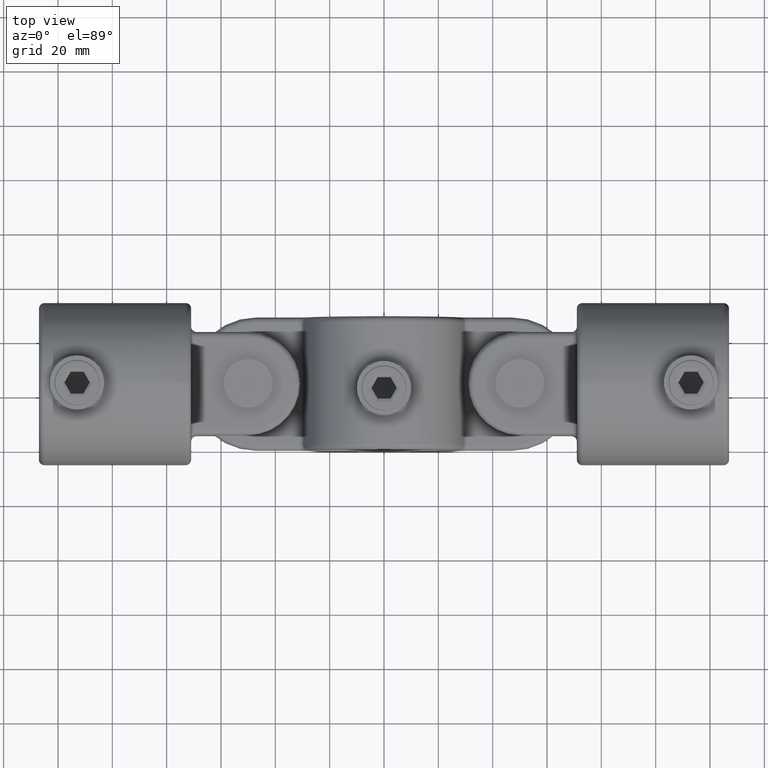
[diagram: clean part render]
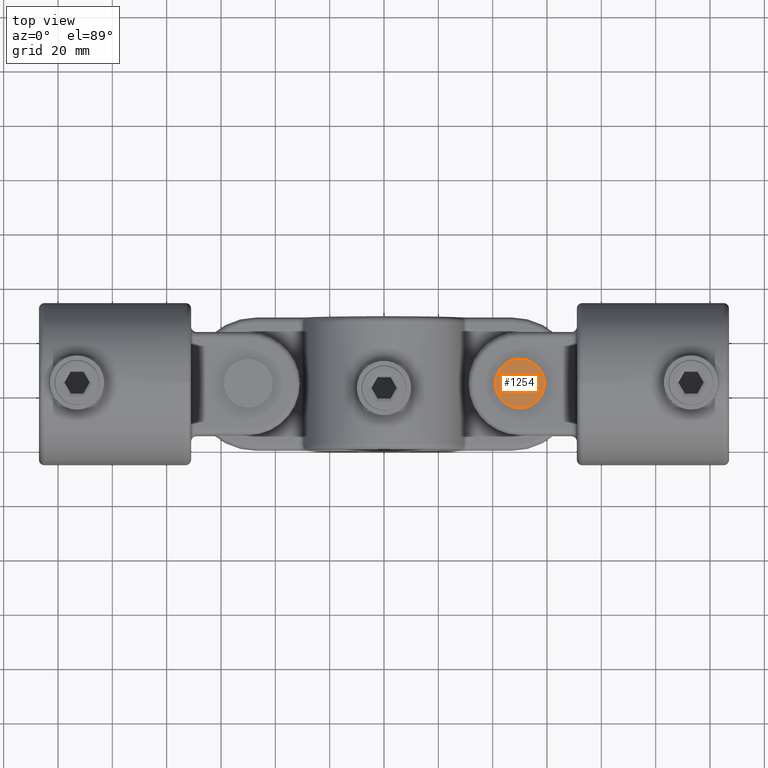
[diagram: same view with one face highlighted and labeled with its STEP entity id]
A machine part, top view. The second image highlights one B-rep face of the part: STEP entity #1254.
In plain terms, the highlighted planar face has unit normal (0, 0, 1).
Its self-contained STEP definition (entity closure, byte-faithful):
#254 = AXIS2_PLACEMENT_3D ( 'NONE', #2747, #1754, #3198 ) ;
#304 = PLANE ( 'NONE',  #5095 ) ;
#1172 = DIRECTION ( 'NONE',  ( 0.000000000000000000, 1.000000000000000000, 0.000000000000000000 ) ) ;
#1254 = ADVANCED_FACE ( 'NONE', ( #5919 ), #304, .T. ) ;
#1334 = CARTESIAN_POINT ( 'NONE',  ( 0.000000000000000000, 26.50000000000000000, 9.000000000000000000 ) ) ;
#1754 = DIRECTION ( 'NONE',  ( 0.000000000000000000, 1.000000000000000000, 0.000000000000000000 ) ) ;
#2747 = CARTESIAN_POINT ( 'NONE',  ( 0.000000000000000000, 26.50000000000000000, 0.000000000000000000 ) ) ;
#3198 = DIRECTION ( 'NONE',  ( 0.000000000000000000, 0.000000000000000000, 1.000000000000000000 ) ) ;
#3402 = EDGE_LOOP ( 'NONE', ( #5437 ) ) ;
#3610 = EDGE_CURVE ( 'NONE', #5765, #5765, #5696, .T. ) ;
#3920 = DIRECTION ( 'NONE',  ( 0.000000000000000000, -0.000000000000000000, 1.000000000000000000 ) ) ;
#4081 = CARTESIAN_POINT ( 'NONE',  ( 0.000000000000000000, 26.50000000000000000, 0.000000000000000000 ) ) ;
#5095 = AXIS2_PLACEMENT_3D ( 'NONE', #4081, #1172, #3920 ) ;
#5437 = ORIENTED_EDGE ( 'NONE', *, *, #3610, .T. ) ;
#5696 = CIRCLE ( 'NONE', #254, 9.000000000000000000 ) ;
#5765 = VERTEX_POINT ( 'NONE', #1334 ) ;
#5919 = FACE_OUTER_BOUND ( 'NONE', #3402, .T. ) ;